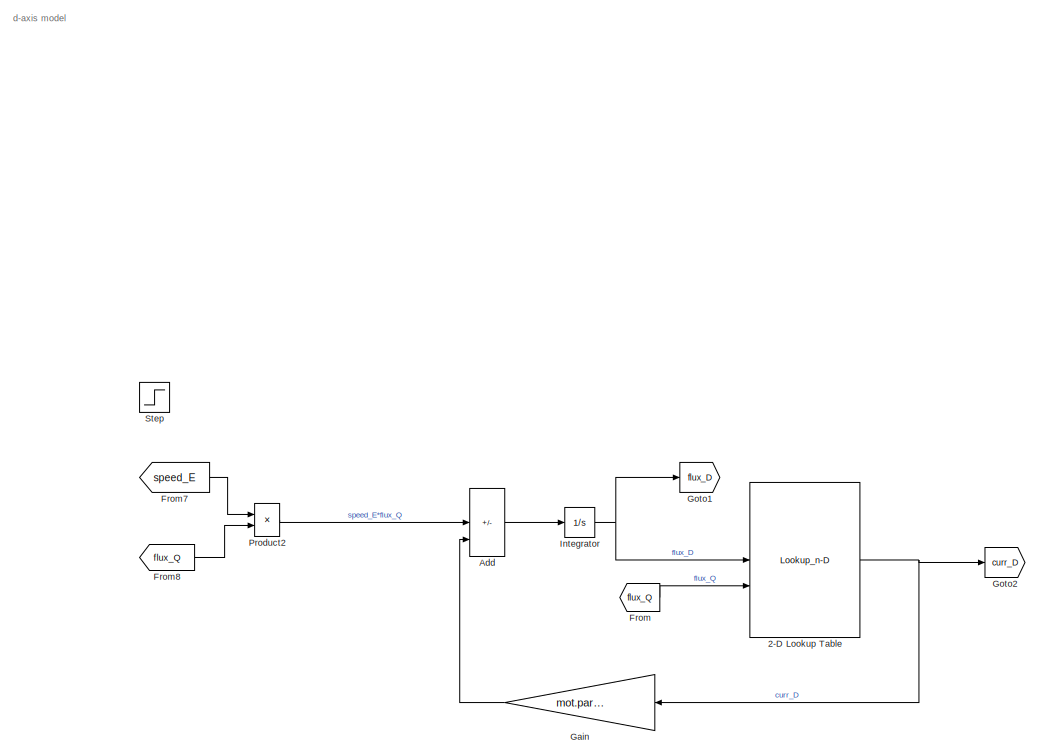
[diagram: root canvas - part 1/4, top left region]
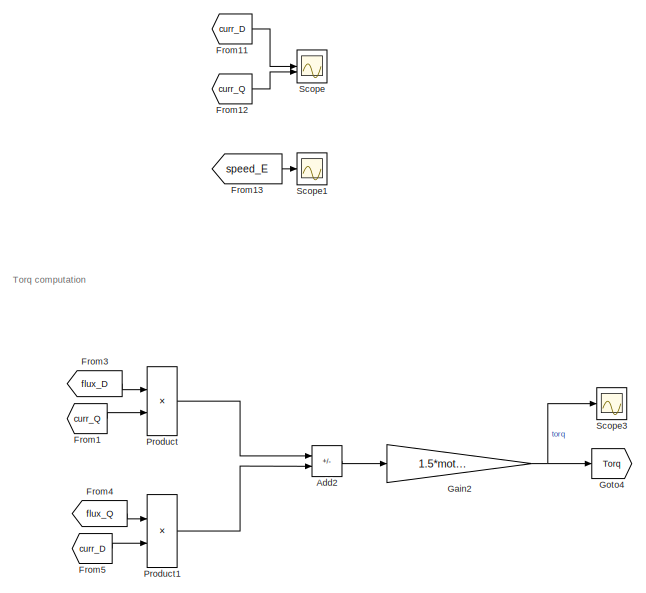
[diagram: root canvas - part 2/4, central region]
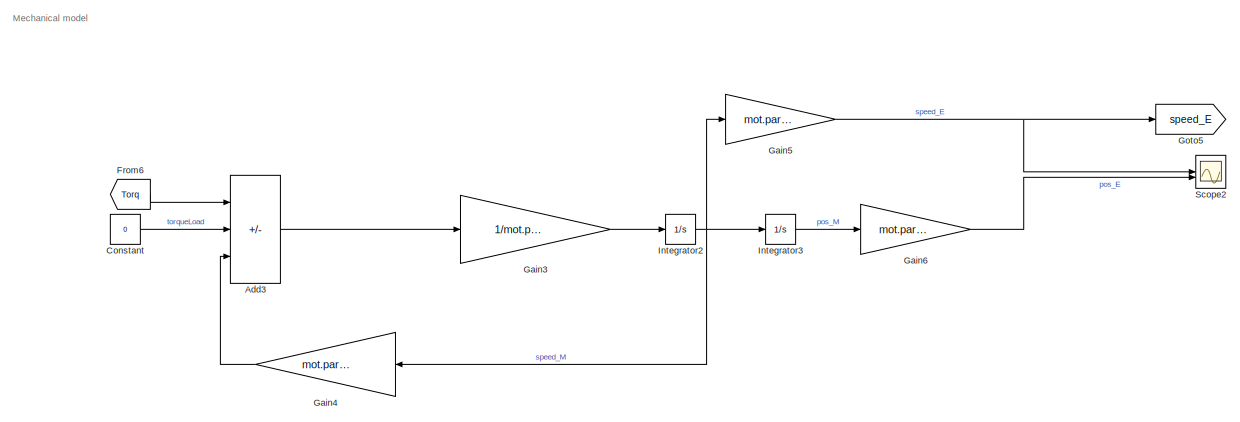
[diagram: root canvas - part 3/4, bottom right region]
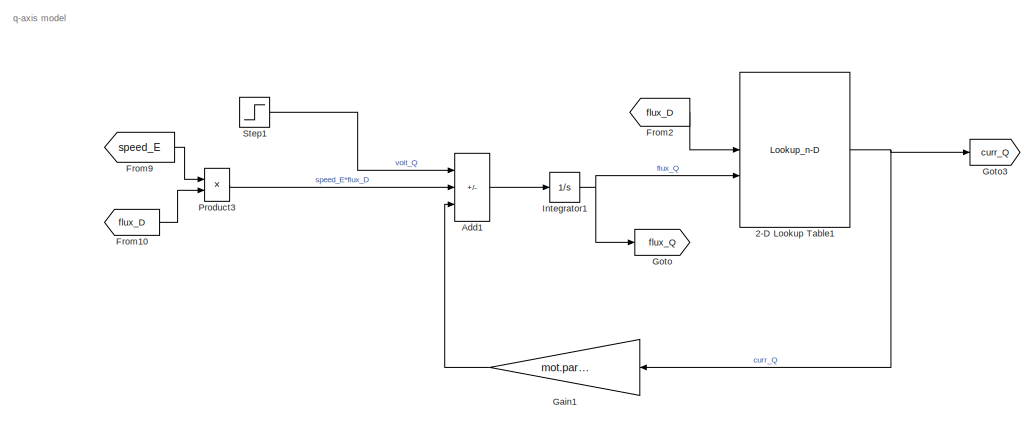
[diagram: root canvas - part 4/4, bottom left region]
MODEL slx_3d53fa2dde24
KIND model
CONFIG AbsTol = auto
CONFIG EnableMultiTasking = off
CONFIG FixedStep = auto
CONFIG MaxStep = auto
CONFIG MinStep = auto
CONFIG RelTol = 1e-3
CONFIG SampleTimeConstraint = Unconstrained
CONFIG SolverName = VariableStepAuto
CONFIG StartTime = 0.0
CONFIG StopTime = 10.0
BLOCK [Lookup_n-D] 2-D Lookup Table
  BreakpointsForDimension1 = mot.maps.fluxVec_D
  BreakpointsForDimension2 = mot.maps.fluxVec_Q
  InputPortMap = u0,u1
  InternalRulePriority = Speed
  RndMeth = Simplest
  Table = mot.maps.currMap_D'
BLOCK [Lookup_n-D] 2-D Lookup Table1
  BreakpointsForDimension1 = mot.maps.fluxVec_D
  BreakpointsForDimension2 = mot.maps.fluxVec_Q
  InputPortMap = u0,u1
  InternalRulePriority = Speed
  RndMeth = Simplest
  Table = mot.maps.currMap_Q'
BLOCK [Sum] Add
  IconShape = rectangular
  Inputs = ++-
BLOCK [Sum] Add1
  IconShape = rectangular
  Inputs = +--
BLOCK [Sum] Add2
  IconShape = rectangular
  Inputs = +-
BLOCK [Sum] Add3
  IconShape = rectangular
  Inputs = +--
BLOCK [Constant] Constant
  Value = 0
BLOCK [From] From
  GotoTag = flux_Q
BLOCK [From] From1
  GotoTag = curr_Q
BLOCK [From] From10
  GotoTag = flux_D
BLOCK [From] From11
  GotoTag = curr_D
BLOCK [From] From12
  GotoTag = curr_Q
BLOCK [From] From13
  GotoTag = speed_E
BLOCK [From] From2
  GotoTag = flux_D
BLOCK [From] From3
  GotoTag = flux_D
BLOCK [From] From4
  GotoTag = flux_Q
BLOCK [From] From5
  GotoTag = curr_D
BLOCK [From] From6
  GotoTag = Torq
BLOCK [From] From7
  GotoTag = speed_E
BLOCK [From] From8
  GotoTag = flux_Q
BLOCK [From] From9
  GotoTag = speed_E
BLOCK [Gain] Gain
  Gain = mot.param.resistance
  NameLocation = top
BLOCK [Gain] Gain1
  Gain = mot.param.resistance
  NameLocation = top
BLOCK [Gain] Gain2
  Gain = 1.5*mot.param.pp
BLOCK [Gain] Gain3
  Gain = 1/mot.param.inertiaM
BLOCK [Gain] Gain4
  Gain = mot.param.frictionM
  NameLocation = top
BLOCK [Gain] Gain5
  Gain = mot.param.pp
BLOCK [Gain] Gain6
  Gain = mot.param.pp
BLOCK [Goto] Goto
  GotoTag = flux_Q
BLOCK [Goto] Goto1
  GotoTag = flux_D
BLOCK [Goto] Goto2
  GotoTag = curr_D
BLOCK [Goto] Goto3
  GotoTag = curr_Q
BLOCK [Goto] Goto4
  GotoTag = Torq
BLOCK [Goto] Goto5
  GotoTag = speed_E
BLOCK [Integrator] Integrator
  InitialCondition = mot.param.fluxPM
BLOCK [Integrator] Integrator1
BLOCK [Integrator] Integrator2
BLOCK [Integrator] Integrator3
BLOCK [Product] Product
BLOCK [Product] Product1
BLOCK [Product] Product2
BLOCK [Product] Product3
BLOCK [Scope] Scope
  Floating = off
  NumInputPorts = 2
  ScopeSpecificationString = Simulink.scopes.TimeScopeBlockCfg('CurrentConfiguration', extmgr.ConfigurationSet(extmgr.Configuration('Core','General UI',true),extmgr.Configuration('Core','Source UI',true),extmgr.Configuration('Sources','WiredSimulink',true),extmgr.Configuration('Visuals','Time Domain',true,'SerializedDisplays',{struct('MinYLimReal','-0.01139','MaxYLimReal','2.01274','YLabelReal','','MinYLimMag','0.00000','MaxY...<+1517ch>
BLOCK [Scope] Scope1
  Floating = off
  NumInputPorts = 1
  ScopeSpecificationString = Simulink.scopes.TimeScopeBlockCfg('CurrentConfiguration', extmgr.ConfigurationSet(extmgr.Configuration('Core','General UI',true),extmgr.Configuration('Core','Source UI',true),extmgr.Configuration('Sources','WiredSimulink',true,'DataLoggingVariableName','ScopeData1'),extmgr.Configuration('Visuals','Time Domain',true,'SerializedDisplays',{struct('MinYLimReal','20.3038','MaxYLimReal','131.48104','YLa...<+1510ch>
BLOCK [Scope] Scope2
  Floating = off
  NumInputPorts = 2
  ScopeSpecificationString = Simulink.scopes.TimeScopeBlockCfg('CurrentConfiguration', extmgr.ConfigurationSet(extmgr.Configuration('Core','General UI',true),extmgr.Configuration('Core','Source UI',true),extmgr.Configuration('Sources','WiredSimulink',true,'DataLoggingVariableName','ScopeData2'),extmgr.Configuration('Visuals','Time Domain',true,'SerializedDisplays',{struct('MinYLimReal','-5.79706','MaxYLimReal','135.20424','YL...<+1515ch>
BLOCK [Scope] Scope3
  Floating = off
  NumInputPorts = 1
  ScopeSpecificationString = Simulink.scopes.TimeScopeBlockCfg('CurrentConfiguration', extmgr.ConfigurationSet(extmgr.Configuration('Core','General UI',true),extmgr.Configuration('Core','Source UI',true),extmgr.Configuration('Sources','WiredSimulink',true,'DataLoggingVariableName','ScopeData1'),extmgr.Configuration('Visuals','Time Domain',true,'SerializedDisplays',{struct('MinYLimReal','-0.00281','MaxYLimReal','0.00581','YLab...<+1499ch>
BLOCK [Step] Step
  SampleTime = 0
BLOCK [Step] Step1
  SampleTime = 0
  Time = 2
ANNOTATION (root): Mechanical model
ANNOTATION (root): Torq computation
ANNOTATION (root): d-axis model
ANNOTATION (root): q-axis model
NET 2-D Lookup Table1:1 -> Gain1:1, Goto3:1
NET 2-D Lookup Table:1 -> Gain:1, Goto2:1
LINE Add1:1 -> Integrator1:1
LINE Add2:1 -> Gain2:1
LINE Add3:1 -> Gain3:1
LINE Add:1 -> Integrator:1
LINE Constant:1 -> Add3:2
LINE From10:1 -> Product3:2
LINE From11:1 -> Scope:1
LINE From12:1 -> Scope:2
LINE From13:1 -> Scope1:1
LINE From1:1 -> Product:2
LINE From2:1 -> 2-D Lookup Table1:1
LINE From3:1 -> Product:1
LINE From4:1 -> Product1:1
LINE From5:1 -> Product1:2
LINE From6:1 -> Add3:1
LINE From7:1 -> Product2:1
LINE From8:1 -> Product2:2
LINE From9:1 -> Product3:1
LINE From:1 -> 2-D Lookup Table:2
LINE Gain1:1 -> Add1:3
NET Gain2:1 -> Goto4:1, Scope3:1
LINE Gain3:1 -> Integrator2:1
LINE Gain4:1 -> Add3:3
NET Gain5:1 -> Goto5:1, Scope2:1
LINE Gain6:1 -> Scope2:2
LINE Gain:1 -> Add:3
NET Integrator1:1 -> 2-D Lookup Table1:2, Goto:1
NET Integrator2:1 -> Gain4:1, Gain5:1, Integrator3:1
LINE Integrator3:1 -> Gain6:1
NET Integrator:1 -> 2-D Lookup Table:1, Goto1:1
LINE Product1:1 -> Add2:2
LINE Product2:1 -> Add:2
LINE Product3:1 -> Add1:2
LINE Product:1 -> Add2:1
LINE Step1:1 -> Add1:1
note: NET lines group one-source signal fan-out (src -> all destinations, sorted); 1:1 wires keep LINE
